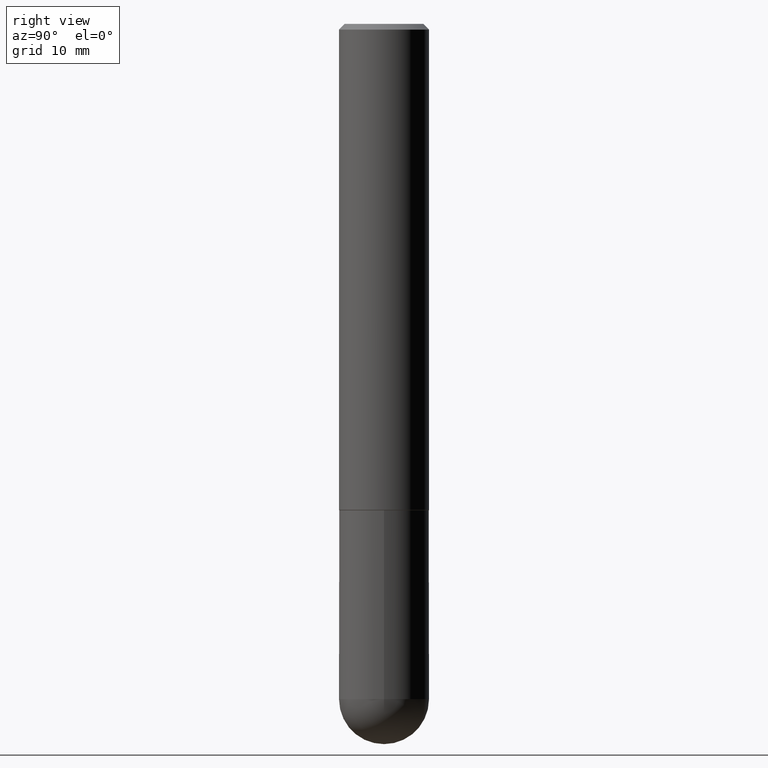
[diagram: clean part render]
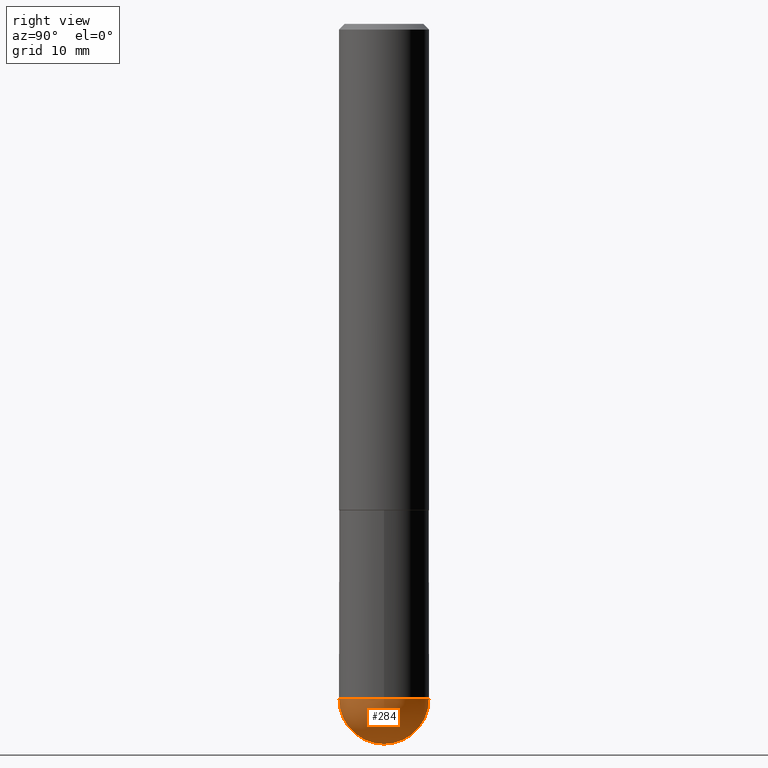
[diagram: same view with one face highlighted and labeled with its STEP entity id]
A machine part, right view. The second image highlights one B-rep face of the part: STEP entity #284.
In plain terms, the highlighted spherical surface has radius 3.9688 mm.
Its self-contained STEP definition (entity closure, byte-faithful):
#14 = DIRECTION ( 'NONE',  ( -1.000000000000000000, 6.982962677686265922E-15, -4.883557194083112340E-29 ) ) ;
#42 = VERTEX_POINT ( 'NONE', #410 ) ;
#64 = CARTESIAN_POINT ( 'NONE',  ( 5.400447736582527652E-29, -8.657341756053672891E-15, -2.343750000000000000 ) ) ;
#74 = CARTESIAN_POINT ( 'NONE',  ( -1.110223024625101517E-15, -0.1562500000000085487, -2.343749999999999556 ) ) ;
#80 = ORIENTED_EDGE ( 'NONE', *, *, #325, .F. ) ;
#104 = CIRCLE ( 'NONE', #310, 0.1562500000000002498 ) ;
#106 = DIRECTION ( 'NONE',  ( 1.000000000000000000, -6.982962677686262766E-15, 0.000000000000000000 ) ) ;
#127 = EDGE_CURVE ( 'NONE', #317, #151, #236, .T. ) ;
#132 = DIRECTION ( 'NONE',  ( 6.982962677686265922E-15, 1.000000000000000000, 0.000000000000000000 ) ) ;
#139 = CARTESIAN_POINT ( 'NONE',  ( 5.789233224183170584E-29, -9.193318162129576161E-15, -2.500000000000000000 ) ) ;
#141 = DIRECTION ( 'NONE',  ( 6.982962677686265922E-15, 1.000000000000000000, -3.496765431890251398E-15 ) ) ;
#143 = VERTEX_POINT ( 'NONE', #139 ) ;
#151 = VERTEX_POINT ( 'NONE', #321 ) ;
#165 = CARTESIAN_POINT ( 'NONE',  ( 5.731567514496413899E-29, -8.183159387913622595E-15, -2.343750000000000000 ) ) ;
#185 = AXIS2_PLACEMENT_3D ( 'NONE', #232, #363, #106 ) ;
#188 = AXIS2_PLACEMENT_3D ( 'NONE', #165, #286, #328 ) ;
#204 = ORIENTED_EDGE ( 'NONE', *, *, #259, .F. ) ;
#214 = DIRECTION ( 'NONE',  ( -1.000000000000000000, 7.105427357601001070E-15, -4.926315508542082329E-29 ) ) ;
#232 = CARTESIAN_POINT ( 'NONE',  ( 5.731567514496413899E-29, -8.183159387913622595E-15, -2.343750000000000000 ) ) ;
#234 = FACE_OUTER_BOUND ( 'NONE', #371, .T. ) ;
#236 = CIRCLE ( 'NONE', #188, 0.1562500000000000000 ) ;
#240 = CARTESIAN_POINT ( 'NONE',  ( 5.400447736582527652E-29, -8.657341756053672891E-15, -2.343750000000000000 ) ) ;
#249 = EDGE_CURVE ( 'NONE', #143, #42, #260, .T. ) ;
#259 = EDGE_CURVE ( 'NONE', #143, #317, #104, .T. ) ;
#260 = CIRCLE ( 'NONE', #330, 0.1562500000000002498 ) ;
#267 = DIRECTION ( 'NONE',  ( -7.105427357601000281E-15, -1.000000000000000000, 0.000000000000000000 ) ) ;
#284 = ADVANCED_FACE ( 'NONE', ( #234 ), #307, .T. ) ;
#286 = DIRECTION ( 'NONE',  ( -2.445468806185136597E-29, 3.491481338843145583E-15, 1.000000000000000000 ) ) ;
#307 = SPHERICAL_SURFACE ( 'NONE', #345, 0.1562500000000002498 ) ;
#310 = AXIS2_PLACEMENT_3D ( 'NONE', #393, #214, #267 ) ;
#317 = VERTEX_POINT ( 'NONE', #74 ) ;
#321 = CARTESIAN_POINT ( 'NONE',  ( 0.1562500000000000000, -8.129477862328905246E-15, -2.343750000000000000 ) ) ;
#325 = EDGE_CURVE ( 'NONE', #151, #42, #372, .T. ) ;
#328 = DIRECTION ( 'NONE',  ( 1.000000000000000000, -6.982962677686262766E-15, 0.000000000000000000 ) ) ;
#330 = AXIS2_PLACEMENT_3D ( 'NONE', #64, #361, #132 ) ;
#340 = ORIENTED_EDGE ( 'NONE', *, *, #127, .F. ) ;
#345 = AXIS2_PLACEMENT_3D ( 'NONE', #240, #14, #141 ) ;
#349 = ORIENTED_EDGE ( 'NONE', *, *, #249, .T. ) ;
#361 = DIRECTION ( 'NONE',  ( 1.000000000000000000, -6.982962677686265922E-15, 4.883557194083112340E-29 ) ) ;
#363 = DIRECTION ( 'NONE',  ( -2.445468806185136597E-29, 3.491481338843145583E-15, 1.000000000000000000 ) ) ;
#371 = EDGE_LOOP ( 'NONE', ( #204, #349, #80, #340 ) ) ;
#372 = CIRCLE ( 'NONE', #185, 0.1562500000000000000 ) ;
#393 = CARTESIAN_POINT ( 'NONE',  ( 5.400447736582527652E-29, -8.657341756053672891E-15, -2.343750000000000000 ) ) ;
#410 = CARTESIAN_POINT ( 'NONE',  ( 1.091087918388535577E-15, 0.1562499999999916733, -2.343750000000000444 ) ) ;